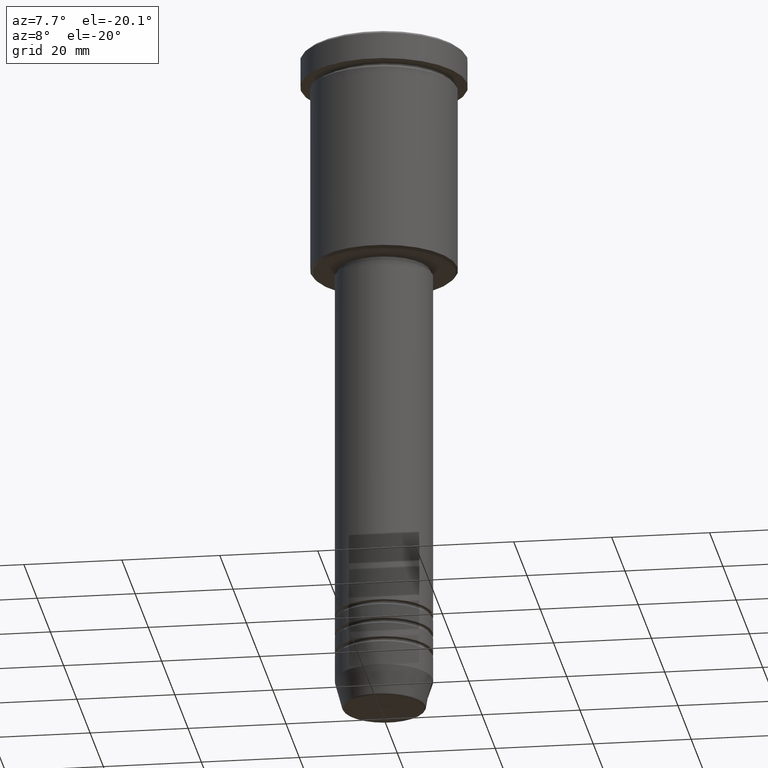
[diagram: clean part render]
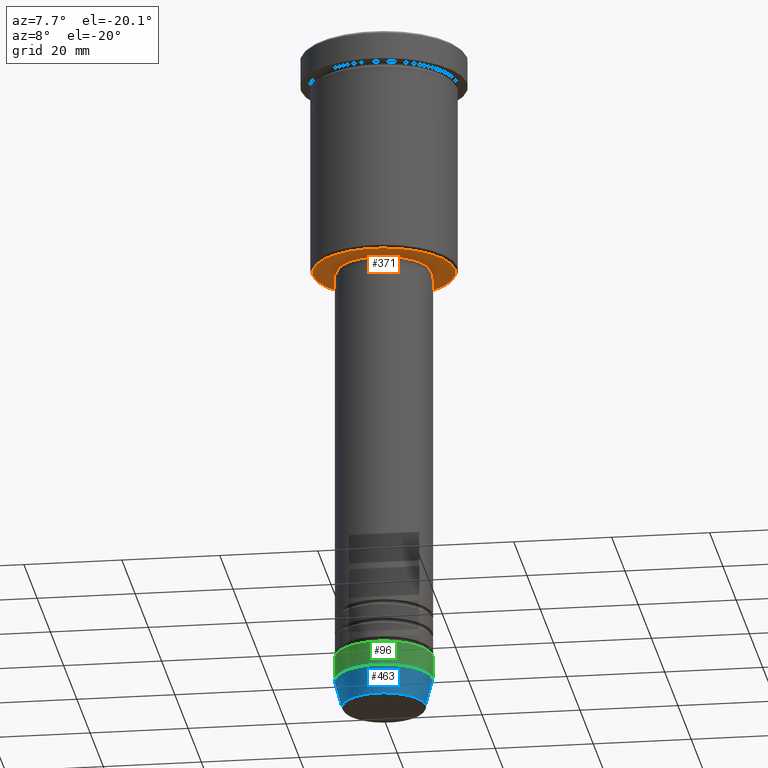
[diagram: same view with three faces highlighted in distinct colors, each labeled with its STEP entity id]
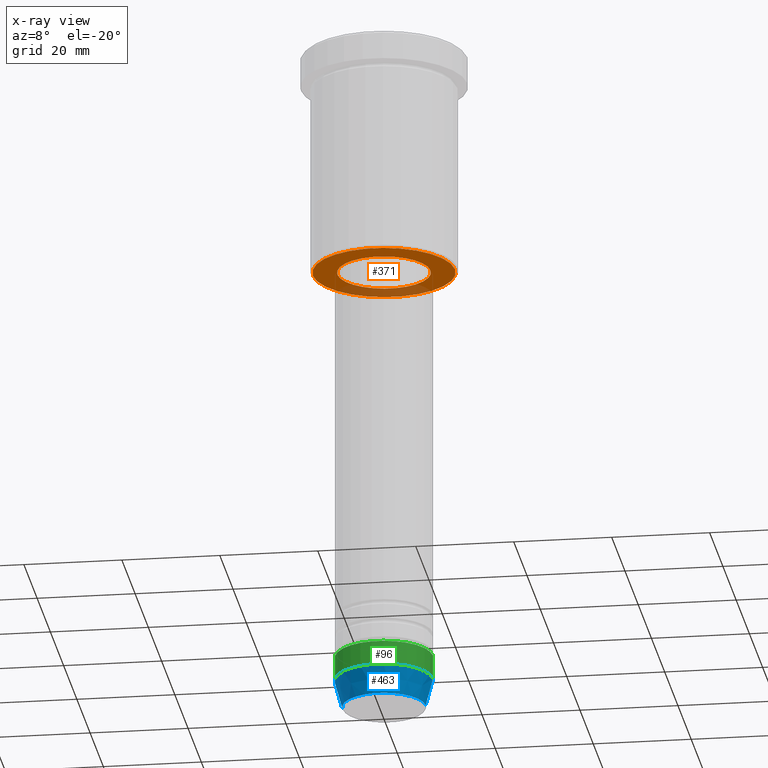
[diagram: x-ray of the same camera — body ghosted, the three highlighted faces saturated]
A machine part, auxiliary view with three faces highlighted in distinct colors.
The next image is the same camera in x-ray (body ghosted, the three faces saturated) — at least one of them is partly hidden behind the body in this view.
Their STEP definitions:

[orange] entity #371 — the highlighted planar face has unit normal (0, 0, -1).
#9 = AXIS2_PLACEMENT_3D ( 'NONE', #847, #141, #860 ) ;
#46 = CARTESIAN_POINT ( 'NONE',  ( 14.49999999999999645, 0.000000000000000000, -46.00000000000000000 ) ) ;
#70 = ORIENTED_EDGE ( 'NONE', *, *, #586, .T. ) ;
#82 = EDGE_CURVE ( 'NONE', #1031, #273, #167, .T. ) ;
#85 = VERTEX_POINT ( 'NONE', #46 ) ;
#141 = DIRECTION ( 'NONE',  ( -0.000000000000000000, -0.000000000000000000, 1.000000000000000000 ) ) ;
#146 = VERTEX_POINT ( 'NONE', #433 ) ;
#167 = CIRCLE ( 'NONE', #9, 9.500000000000001776 ) ;
#185 = DIRECTION ( 'NONE',  ( 0.000000000000000000, 0.000000000000000000, -1.000000000000000000 ) ) ;
#187 = CIRCLE ( 'NONE', #262, 14.49999999999999645 ) ;
#259 = CARTESIAN_POINT ( 'NONE',  ( 9.500000000000001776, 0.000000000000000000, -46.00000000000000711 ) ) ;
#262 = AXIS2_PLACEMENT_3D ( 'NONE', #784, #605, #583 ) ;
#273 = VERTEX_POINT ( 'NONE', #278 ) ;
#278 = CARTESIAN_POINT ( 'NONE',  ( -9.500000000000001776, 1.163414459189985682E-15, -46.00000000000000711 ) ) ;
#289 = PLANE ( 'NONE',  #1115 ) ;
#303 = EDGE_LOOP ( 'NONE', ( #878, #70 ) ) ;
#371 = ADVANCED_FACE ( 'NONE', ( #388, #745 ), #289, .T. ) ;
#388 = FACE_OUTER_BOUND ( 'NONE', #972, .T. ) ;
#418 = DIRECTION ( 'NONE',  ( 0.000000000000000000, 0.000000000000000000, -1.000000000000000000 ) ) ;
#433 = CARTESIAN_POINT ( 'NONE',  ( -14.49999999999999645, 1.806354028742345802E-15, -46.00000000000000000 ) ) ;
#491 = ORIENTED_EDGE ( 'NONE', *, *, #712, .T. ) ;
#544 = DIRECTION ( 'NONE',  ( -1.000000000000000000, 0.000000000000000000, -0.000000000000000000 ) ) ;
#560 = DIRECTION ( 'NONE',  ( -0.000000000000000000, -0.000000000000000000, 1.000000000000000000 ) ) ;
#583 = DIRECTION ( 'NONE',  ( -1.000000000000000000, 0.000000000000000000, 0.000000000000000000 ) ) ;
#586 = EDGE_CURVE ( 'NONE', #273, #1031, #637, .T. ) ;
#604 = ORIENTED_EDGE ( 'NONE', *, *, #997, .T. ) ;
#605 = DIRECTION ( 'NONE',  ( 0.000000000000000000, 0.000000000000000000, -1.000000000000000000 ) ) ;
#632 = CARTESIAN_POINT ( 'NONE',  ( 0.000000000000000000, 15.00000000000000000, -46.00000000000000000 ) ) ;
#637 = CIRCLE ( 'NONE', #751, 9.500000000000001776 ) ;
#653 = CARTESIAN_POINT ( 'NONE',  ( 0.000000000000000000, 0.000000000000000000, -46.00000000000000711 ) ) ;
#685 = CARTESIAN_POINT ( 'NONE',  ( 0.000000000000000000, 0.000000000000000000, -46.00000000000000000 ) ) ;
#712 = EDGE_CURVE ( 'NONE', #85, #146, #1097, .T. ) ;
#745 = FACE_BOUND ( 'NONE', #303, .T. ) ;
#751 = AXIS2_PLACEMENT_3D ( 'NONE', #653, #560, #932 ) ;
#784 = CARTESIAN_POINT ( 'NONE',  ( 0.000000000000000000, 0.000000000000000000, -46.00000000000000000 ) ) ;
#847 = CARTESIAN_POINT ( 'NONE',  ( 0.000000000000000000, 0.000000000000000000, -46.00000000000000711 ) ) ;
#860 = DIRECTION ( 'NONE',  ( 1.000000000000000000, 0.000000000000000000, 0.000000000000000000 ) ) ;
#869 = AXIS2_PLACEMENT_3D ( 'NONE', #685, #418, #960 ) ;
#878 = ORIENTED_EDGE ( 'NONE', *, *, #82, .T. ) ;
#932 = DIRECTION ( 'NONE',  ( 1.000000000000000000, 0.000000000000000000, 0.000000000000000000 ) ) ;
#960 = DIRECTION ( 'NONE',  ( -1.000000000000000000, 0.000000000000000000, 0.000000000000000000 ) ) ;
#972 = EDGE_LOOP ( 'NONE', ( #491, #604 ) ) ;
#997 = EDGE_CURVE ( 'NONE', #146, #85, #187, .T. ) ;
#1031 = VERTEX_POINT ( 'NONE', #259 ) ;
#1097 = CIRCLE ( 'NONE', #869, 14.49999999999999645 ) ;
#1115 = AXIS2_PLACEMENT_3D ( 'NONE', #632, #185, #544 ) ;

[blue] entity #463 — the highlighted conical surface has half-angle 15 deg.
#8 = CARTESIAN_POINT ( 'NONE',  ( -10.00000000000000178, 1.224646799147353454E-15, -134.0000000000000000 ) ) ;
#27 = CARTESIAN_POINT ( 'NONE',  ( -8.491604264568316296, 1.132284198685156781E-15, -139.6294095225512706 ) ) ;
#41 = DIRECTION ( 'NONE',  ( -0.000000000000000000, -0.000000000000000000, 1.000000000000000000 ) ) ;
#60 = CARTESIAN_POINT ( 'NONE',  ( -10.00000000000000178, 1.224646799147353454E-15, -134.0000000000000000 ) ) ;
#87 = AXIS2_PLACEMENT_3D ( 'NONE', #392, #933, #943 ) ;
#102 = CIRCLE ( 'NONE', #199, 10.00000000000000178 ) ;
#133 = EDGE_CURVE ( 'NONE', #480, #597, #102, .T. ) ;
#164 = CARTESIAN_POINT ( 'NONE',  ( 0.000000000000000000, 0.000000000000000000, -134.0000000000000000 ) ) ;
#176 = LINE ( 'NONE', #809, #905 ) ;
#199 = AXIS2_PLACEMENT_3D ( 'NONE', #164, #338, #448 ) ;
#221 = CONICAL_SURFACE ( 'NONE', #87, 10.00000000000000178, 0.2617993877991501295 ) ;
#233 = FACE_OUTER_BOUND ( 'NONE', #310, .T. ) ;
#305 = LINE ( 'NONE', #8, #753 ) ;
#310 = EDGE_LOOP ( 'NONE', ( #594, #1058, #725, #694 ) ) ;
#318 = CIRCLE ( 'NONE', #984, 8.491604264568316296 ) ;
#338 = DIRECTION ( 'NONE',  ( -0.000000000000000000, -0.000000000000000000, 1.000000000000000000 ) ) ;
#392 = CARTESIAN_POINT ( 'NONE',  ( 0.000000000000000000, 0.000000000000000000, -134.0000000000000000 ) ) ;
#448 = DIRECTION ( 'NONE',  ( 1.000000000000000000, 0.000000000000000000, 0.000000000000000000 ) ) ;
#450 = DIRECTION ( 'NONE',  ( 0.2588190451025214056, 0.000000000000000000, 0.9659258262890680902 ) ) ;
#463 = ADVANCED_FACE ( 'NONE', ( #233 ), #221, .T. ) ;
#480 = VERTEX_POINT ( 'NONE', #60 ) ;
#587 = VERTEX_POINT ( 'NONE', #27 ) ;
#591 = CARTESIAN_POINT ( 'NONE',  ( 10.00000000000000178, 0.000000000000000000, -134.0000000000000000 ) ) ;
#594 = ORIENTED_EDGE ( 'NONE', *, *, #1087, .F. ) ;
#597 = VERTEX_POINT ( 'NONE', #591 ) ;
#694 = ORIENTED_EDGE ( 'NONE', *, *, #133, .F. ) ;
#725 = ORIENTED_EDGE ( 'NONE', *, *, #1133, .T. ) ;
#730 = DIRECTION ( 'NONE',  ( -0.2588190451025214056, 3.169619151431772953E-17, 0.9659258262890680902 ) ) ;
#753 = VECTOR ( 'NONE', #730, 1000.000000000000000 ) ;
#809 = CARTESIAN_POINT ( 'NONE',  ( 10.00000000000000178, 0.000000000000000000, -134.0000000000000000 ) ) ;
#833 = EDGE_CURVE ( 'NONE', #587, #1103, #318, .T. ) ;
#874 = CARTESIAN_POINT ( 'NONE',  ( 8.491604264568316296, 0.000000000000000000, -139.6294095225512706 ) ) ;
#905 = VECTOR ( 'NONE', #450, 1000.000000000000000 ) ;
#933 = DIRECTION ( 'NONE',  ( -0.000000000000000000, -0.000000000000000000, 1.000000000000000000 ) ) ;
#943 = DIRECTION ( 'NONE',  ( 1.000000000000000000, 0.000000000000000000, 0.000000000000000000 ) ) ;
#962 = DIRECTION ( 'NONE',  ( 1.000000000000000000, 0.000000000000000000, 0.000000000000000000 ) ) ;
#984 = AXIS2_PLACEMENT_3D ( 'NONE', #1175, #41, #962 ) ;
#1058 = ORIENTED_EDGE ( 'NONE', *, *, #833, .T. ) ;
#1087 = EDGE_CURVE ( 'NONE', #587, #480, #305, .T. ) ;
#1103 = VERTEX_POINT ( 'NONE', #874 ) ;
#1133 = EDGE_CURVE ( 'NONE', #1103, #597, #176, .T. ) ;
#1175 = CARTESIAN_POINT ( 'NONE',  ( 0.000000000000000000, 0.000000000000000000, -139.6294095225512706 ) ) ;

[green] entity #96 — the highlighted cylindrical surface (partial cylindrical patch) has radius 10 mm, axis along (-0, -0, 1).
#22 = CARTESIAN_POINT ( 'NONE',  ( 0.000000000000000000, 0.000000000000000000, -129.0000000000000000 ) ) ;
#30 = CARTESIAN_POINT ( 'NONE',  ( 10.00000000000000000, 0.000000000000000000, -129.0000000000000000 ) ) ;
#56 = VERTEX_POINT ( 'NONE', #30 ) ;
#58 = CIRCLE ( 'NONE', #1046, 10.00000000000000000 ) ;
#60 = CARTESIAN_POINT ( 'NONE',  ( -10.00000000000000178, 1.224646799147353454E-15, -134.0000000000000000 ) ) ;
#96 = ADVANCED_FACE ( 'NONE', ( #309 ), #219, .T. ) ;
#102 = CIRCLE ( 'NONE', #199, 10.00000000000000178 ) ;
#115 = CARTESIAN_POINT ( 'NONE',  ( -10.00000000000000000, 1.224646799147353256E-15, -129.0000000000000000 ) ) ;
#122 = LINE ( 'NONE', #494, #842 ) ;
#133 = EDGE_CURVE ( 'NONE', #480, #597, #102, .T. ) ;
#134 = ORIENTED_EDGE ( 'NONE', *, *, #1100, .T. ) ;
#164 = CARTESIAN_POINT ( 'NONE',  ( 0.000000000000000000, 0.000000000000000000, -134.0000000000000000 ) ) ;
#199 = AXIS2_PLACEMENT_3D ( 'NONE', #164, #338, #448 ) ;
#219 = CYLINDRICAL_SURFACE ( 'NONE', #865, 10.00000000000000178 ) ;
#309 = FACE_OUTER_BOUND ( 'NONE', #339, .T. ) ;
#338 = DIRECTION ( 'NONE',  ( -0.000000000000000000, -0.000000000000000000, 1.000000000000000000 ) ) ;
#339 = EDGE_LOOP ( 'NONE', ( #611, #952, #134, #927 ) ) ;
#390 = DIRECTION ( 'NONE',  ( 1.000000000000000000, 0.000000000000000000, 0.000000000000000000 ) ) ;
#448 = DIRECTION ( 'NONE',  ( 1.000000000000000000, 0.000000000000000000, 0.000000000000000000 ) ) ;
#455 = EDGE_CURVE ( 'NONE', #480, #590, #122, .T. ) ;
#479 = LINE ( 'NONE', #1124, #488 ) ;
#480 = VERTEX_POINT ( 'NONE', #60 ) ;
#488 = VECTOR ( 'NONE', #695, 1000.000000000000000 ) ;
#494 = CARTESIAN_POINT ( 'NONE',  ( -10.00000000000000178, 1.224646799147353454E-15, 0.000000000000000000 ) ) ;
#590 = VERTEX_POINT ( 'NONE', #115 ) ;
#591 = CARTESIAN_POINT ( 'NONE',  ( 10.00000000000000178, 0.000000000000000000, -134.0000000000000000 ) ) ;
#597 = VERTEX_POINT ( 'NONE', #591 ) ;
#611 = ORIENTED_EDGE ( 'NONE', *, *, #455, .F. ) ;
#629 = EDGE_CURVE ( 'NONE', #590, #56, #58, .T. ) ;
#669 = CARTESIAN_POINT ( 'NONE',  ( 0.000000000000000000, 0.000000000000000000, 0.000000000000000000 ) ) ;
#695 = DIRECTION ( 'NONE',  ( -0.000000000000000000, -0.000000000000000000, 1.000000000000000000 ) ) ;
#842 = VECTOR ( 'NONE', #1054, 1000.000000000000000 ) ;
#850 = DIRECTION ( 'NONE',  ( -0.000000000000000000, -0.000000000000000000, 1.000000000000000000 ) ) ;
#865 = AXIS2_PLACEMENT_3D ( 'NONE', #669, #1037, #946 ) ;
#927 = ORIENTED_EDGE ( 'NONE', *, *, #629, .F. ) ;
#946 = DIRECTION ( 'NONE',  ( 1.000000000000000000, 0.000000000000000000, 0.000000000000000000 ) ) ;
#952 = ORIENTED_EDGE ( 'NONE', *, *, #133, .T. ) ;
#1037 = DIRECTION ( 'NONE',  ( -0.000000000000000000, -0.000000000000000000, 1.000000000000000000 ) ) ;
#1046 = AXIS2_PLACEMENT_3D ( 'NONE', #22, #850, #390 ) ;
#1054 = DIRECTION ( 'NONE',  ( -0.000000000000000000, -0.000000000000000000, 1.000000000000000000 ) ) ;
#1100 = EDGE_CURVE ( 'NONE', #597, #56, #479, .T. ) ;
#1124 = CARTESIAN_POINT ( 'NONE',  ( 10.00000000000000178, 0.000000000000000000, 0.000000000000000000 ) ) ;